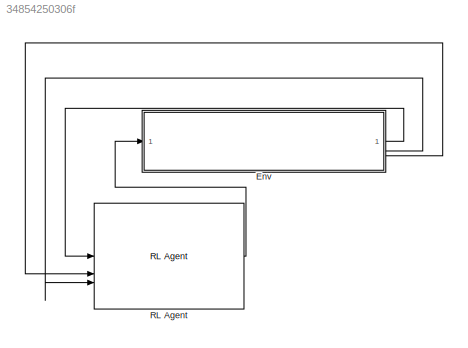
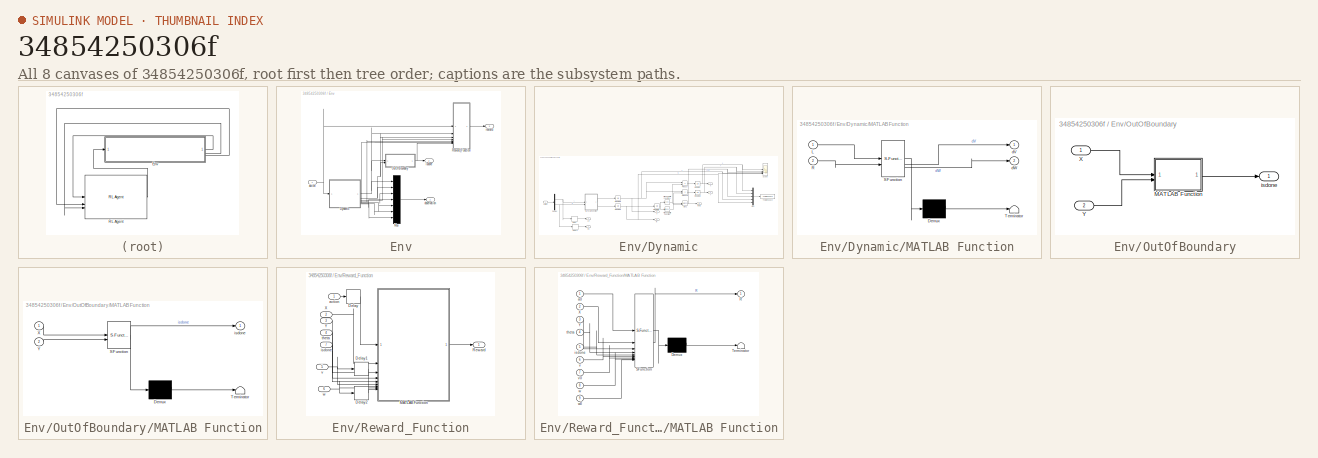
[diagram: thumbnail index - all 8 canvases of the model, root first then tree order]
MODEL slx_34854250306f
KIND model
CONFIG AbsTol = auto
CONFIG EnableMultiTasking = off
CONFIG FixedStep = auto
CONFIG MaxStep = auto
CONFIG MinStep = auto
CONFIG RelTol = 1e-3
CONFIG SampleTimeConstraint = Unconstrained
CONFIG SolverName = VariableStepAuto
CONFIG StartTime = 0.0
CONFIG StopTime = 10.0
BLOCK [SubSystem] Env
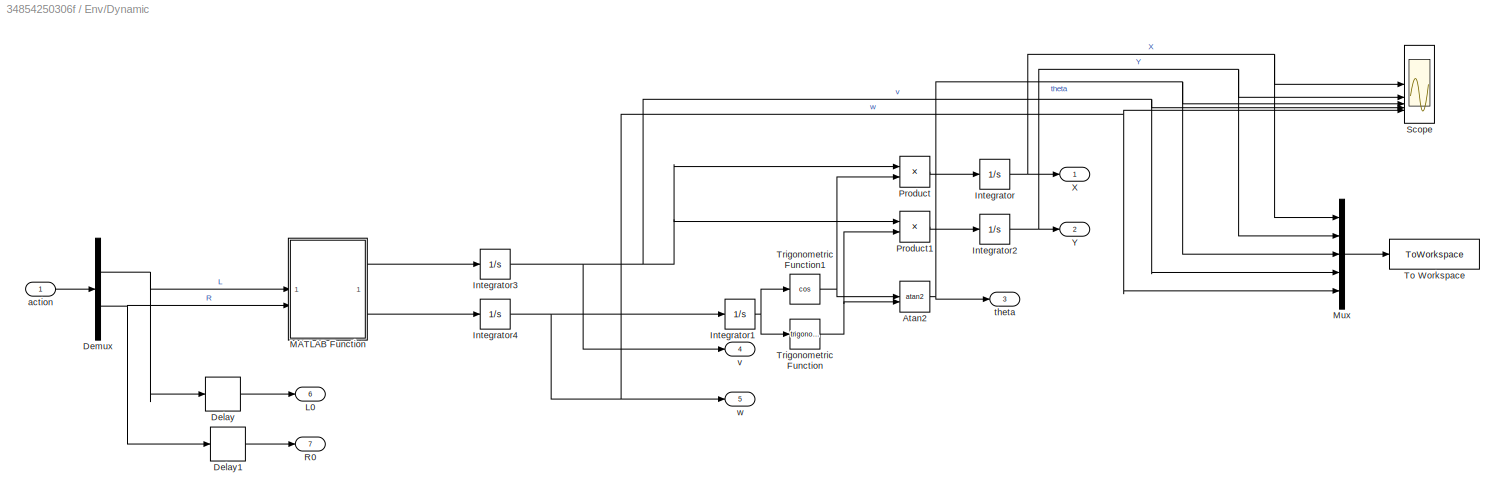
BLOCK [SubSystem] Env/Dynamic
BLOCK [Trigonometry] Env/Dynamic/Atan2
  Operator = atan2
BLOCK [Delay] Env/Dynamic/Delay
  DelayLength = 1
  InitialCondition = 0
  InputPortMap = u0
BLOCK [Delay] Env/Dynamic/Delay1
  DelayLength = 1
  InitialCondition = 0
  InputPortMap = u0
BLOCK [Demux] Env/Dynamic/Demux
  Outputs = 2
BLOCK [Integrator] Env/Dynamic/Integrator
  InitialCondition = x0
BLOCK [Integrator] Env/Dynamic/Integrator1
  InitialCondition = theta0
BLOCK [Integrator] Env/Dynamic/Integrator2
  InitialCondition = y0
BLOCK [Integrator] Env/Dynamic/Integrator3
BLOCK [Integrator] Env/Dynamic/Integrator4
BLOCK [Outport] Env/Dynamic/L0
  Port = 6
BLOCK [SubSystem] Env/Dynamic/MATLAB Function
  ErrorFcn = Stateflow.Translate.translate
  PermitHierarchicalResolution = ExplicitOnly
  SFBlockType = MATLAB Function
  TreatAsAtomicUnit = on
BLOCK [Demux] Env/Dynamic/MATLAB Function/ Demux 
  Outputs = 1
BLOCK [S-Function] Env/Dynamic/MATLAB Function/ SFunction 
  EnableBusSupport = off
  FunctionName = sf_sfun
  PortCounts = [2 3]
  SFcnIsStateOwnerBlock = off
  SFunctionDeploymentMode = off
  Tag = Stateflow S-Function 3
BLOCK [Terminator] Env/Dynamic/MATLAB Function/ Terminator 
BLOCK [Inport] Env/Dynamic/MATLAB Function/L
BLOCK [Inport] Env/Dynamic/MATLAB Function/R
  Port = 2
BLOCK [Outport] Env/Dynamic/MATLAB Function/dV
BLOCK [Outport] Env/Dynamic/MATLAB Function/dW
  Port = 2
BLOCK [Mux] Env/Dynamic/Mux
  DisplayOption = bar
  Inputs = 5
BLOCK [Product] Env/Dynamic/Product
BLOCK [Product] Env/Dynamic/Product1
BLOCK [Outport] Env/Dynamic/R0
  Port = 7
BLOCK [Scope] Env/Dynamic/Scope
  ActiveDisplayYMaximum = 36.2250173593529
  ActiveDisplayYMinimum = -29.512641911410267
  Floating = off
  GraphicalSettings = {"Style":{"BackgroundColor":[0.12941176470588237,0.12941176470588237,0.12941176470588237],"AxesColor":[0.07058823529411765,0.07058823529411765,0.07058823529411765],"LabelsColor":[0.8509803921568627,0.8509803921568627,0.8509803921568627],"PreserveColors":false,"Visible":[true,true,true,true,true],"LineStyle":["-","-","-","-","-"],"LineWidth":[1.5,1.5,1.5,1.5,1.5],"BarWidth":[0.9,0.9,0.9,0.9,0.9],"L...<+2399ch>
  MultipleDisplayCache = [{"MaxYLimMag":13.530684530696153,"MaxYLimReal":36.2250173593529,"MinYLimMag":0,"MinYLimReal":-29.512641911410267,"PlotAsMagnitudePhase":false,"ShowGrid":true,"ShowLegend":true,"Title":"%<SignalLabel>","YLabel":""}]
  NumInputPorts = 5
  ScopeFrameLocation = window
  ShowLegend = on
  WasSavedAsWebScope = on
  WindowPosition = [709.000000,190.000000,560.000000,420.000000,]
BLOCK [ToWorkspace] Env/Dynamic/To Workspace
  FixptAsFi = on
  MaxDataPoints = inf
  SampleTime = -1
  SaveFormat = Structure With Time
  VariableName = simout
BLOCK [Trigonometry] Env/Dynamic/Trigonometric Function
BLOCK [Trigonometry] Env/Dynamic/Trigonometric Function1
  Operator = cos
BLOCK [Outport] Env/Dynamic/X
BLOCK [Outport] Env/Dynamic/Y
  Port = 2
BLOCK [Inport] Env/Dynamic/action
BLOCK [Outport] Env/Dynamic/theta
  Port = 3
BLOCK [Outport] Env/Dynamic/v
  Port = 4
BLOCK [Outport] Env/Dynamic/w
  Port = 5
BLOCK [Mux] Env/Mux
  DisplayOption = bar
  Inputs = 7
BLOCK [SubSystem] Env/OutOfBoundary
BLOCK [SubSystem] Env/OutOfBoundary/MATLAB Function
  ErrorFcn = Stateflow.Translate.translate
  PermitHierarchicalResolution = ExplicitOnly
  SFBlockType = MATLAB Function
  TreatAsAtomicUnit = on
BLOCK [Demux] Env/OutOfBoundary/MATLAB Function/ Demux 
  Outputs = 1
BLOCK [S-Function] Env/OutOfBoundary/MATLAB Function/ SFunction 
  EnableBusSupport = off
  FunctionName = sf_sfun
  PortCounts = [2 2]
  SFcnIsStateOwnerBlock = off
  SFunctionDeploymentMode = off
  Tag = Stateflow S-Function 1
BLOCK [Terminator] Env/OutOfBoundary/MATLAB Function/ Terminator 
BLOCK [Inport] Env/OutOfBoundary/MATLAB Function/X
BLOCK [Inport] Env/OutOfBoundary/MATLAB Function/Y
  Port = 2
BLOCK [Outport] Env/OutOfBoundary/MATLAB Function/isdone
BLOCK [Inport] Env/OutOfBoundary/X
BLOCK [Inport] Env/OutOfBoundary/Y
  Port = 2
BLOCK [Outport] Env/OutOfBoundary/isdone
BLOCK [SubSystem] Env/Reward_Function
BLOCK [Delay] Env/Reward_Function/Delay
  DelayLength = 1
  InitialCondition = 0
  InputPortMap = u0
BLOCK [Delay] Env/Reward_Function/Delay1
  DelayLength = 1
  InitialCondition = 0
  InputPortMap = u0
BLOCK [Delay] Env/Reward_Function/Delay2
  DelayLength = 1
  InitialCondition = 0
  InputPortMap = u0
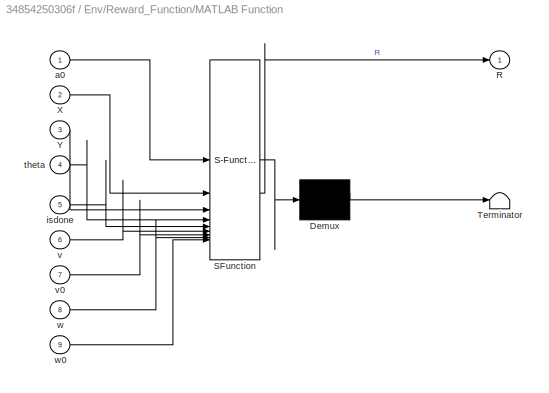
BLOCK [SubSystem] Env/Reward_Function/MATLAB Function
  ErrorFcn = Stateflow.Translate.translate
  PermitHierarchicalResolution = ExplicitOnly
  SFBlockType = MATLAB Function
  TreatAsAtomicUnit = on
BLOCK [Demux] Env/Reward_Function/MATLAB Function/ Demux 
  Outputs = 1
BLOCK [S-Function] Env/Reward_Function/MATLAB Function/ SFunction 
  EnableBusSupport = off
  FunctionName = sf_sfun
  PortCounts = [9 2]
  SFcnIsStateOwnerBlock = off
  SFunctionDeploymentMode = off
  Tag = Stateflow S-Function 2
BLOCK [Terminator] Env/Reward_Function/MATLAB Function/ Terminator 
BLOCK [Outport] Env/Reward_Function/MATLAB Function/R
BLOCK [Inport] Env/Reward_Function/MATLAB Function/X
  Port = 2
BLOCK [Inport] Env/Reward_Function/MATLAB Function/Y
  Port = 3
BLOCK [Inport] Env/Reward_Function/MATLAB Function/a0
BLOCK [Inport] Env/Reward_Function/MATLAB Function/isdone
  Port = 5
BLOCK [Inport] Env/Reward_Function/MATLAB Function/theta
  Port = 4
BLOCK [Inport] Env/Reward_Function/MATLAB Function/v
  Port = 6
BLOCK [Inport] Env/Reward_Function/MATLAB Function/v0
  Port = 7
BLOCK [Inport] Env/Reward_Function/MATLAB Function/w
  Port = 8
BLOCK [Inport] Env/Reward_Function/MATLAB Function/w0
  Port = 9
BLOCK [Outport] Env/Reward_Function/Reward
BLOCK [Inport] Env/Reward_Function/X
  Port = 2
BLOCK [Inport] Env/Reward_Function/Y
  Port = 3
BLOCK [Inport] Env/Reward_Function/action
BLOCK [Inport] Env/Reward_Function/isdone
  Port = 7
BLOCK [Inport] Env/Reward_Function/theta
  Port = 4
BLOCK [Inport] Env/Reward_Function/v
  Port = 5
BLOCK [Inport] Env/Reward_Function/w
  Port = 6
BLOCK [Inport] Env/action
BLOCK [Outport] Env/isdone
  Port = 2
BLOCK [Outport] Env/observation
BLOCK [Outport] Env/reward
  Port = 3
BLOCK [Reference] RL Agent  REF=rllib/RL Agent
  SourceBlock = rllib/RL Agent
  SourceType = RL Agent
NET Env/Dynamic/Atan2:1 -> Env/Dynamic/Mux:3, Env/Dynamic/Scope:3, Env/Dynamic/theta:1
LINE Env/Dynamic/Delay1:1 -> Env/Dynamic/R0:1
LINE Env/Dynamic/Delay:1 -> Env/Dynamic/L0:1
NET Env/Dynamic/Demux:1 -> Env/Dynamic/Delay:1, Env/Dynamic/MATLAB Function:1
NET Env/Dynamic/Demux:2 -> Env/Dynamic/Delay1:1, Env/Dynamic/MATLAB Function:2
NET Env/Dynamic/Integrator1:1 -> Env/Dynamic/Trigonometric Function1:1, Env/Dynamic/Trigonometric Function:1
NET Env/Dynamic/Integrator2:1 -> Env/Dynamic/Mux:2, Env/Dynamic/Scope:2, Env/Dynamic/Y:1
NET Env/Dynamic/Integrator3:1 -> Env/Dynamic/Mux:4, Env/Dynamic/Product1:1, Env/Dynamic/Product:1, Env/Dynamic/Scope:4, Env/Dynamic/v:1
NET Env/Dynamic/Integrator4:1 -> Env/Dynamic/Integrator1:1, Env/Dynamic/Mux:5, Env/Dynamic/Scope:5, Env/Dynamic/w:1
NET Env/Dynamic/Integrator:1 -> Env/Dynamic/Mux:1, Env/Dynamic/Scope:1, Env/Dynamic/X:1
LINE Env/Dynamic/MATLAB Function:1 -> Env/Dynamic/Integrator3:1
LINE Env/Dynamic/MATLAB Function:2 -> Env/Dynamic/Integrator4:1
LINE Env/Dynamic/Mux:1 -> Env/Dynamic/To Workspace:1
LINE Env/Dynamic/Product1:1 -> Env/Dynamic/Integrator2:1
LINE Env/Dynamic/Product:1 -> Env/Dynamic/Integrator:1
NET Env/Dynamic/Trigonometric Function1:1 -> Env/Dynamic/Atan2:1, Env/Dynamic/Product:2
NET Env/Dynamic/Trigonometric Function:1 -> Env/Dynamic/Atan2:2, Env/Dynamic/Product1:2
LINE Env/Dynamic/action:1 -> Env/Dynamic/Demux:1
NET Env/Dynamic:1 -> Env/Mux:1, Env/OutOfBoundary:1, Env/Reward_Function:2
NET Env/Dynamic:2 -> Env/Mux:2, Env/OutOfBoundary:2, Env/Reward_Function:3
NET Env/Dynamic:3 -> Env/Mux:3, Env/Reward_Function:4
NET Env/Dynamic:4 -> Env/Mux:4, Env/Reward_Function:5
NET Env/Dynamic:5 -> Env/Mux:5, Env/Reward_Function:6
LINE Env/Dynamic:6 -> Env/Mux:6
LINE Env/Dynamic:7 -> Env/Mux:7
LINE Env/Mux:1 -> Env/observation:1
LINE Env/OutOfBoundary/MATLAB Function:1 -> Env/OutOfBoundary/isdone:1
LINE Env/OutOfBoundary/X:1 -> Env/OutOfBoundary/MATLAB Function:1
LINE Env/OutOfBoundary/Y:1 -> Env/OutOfBoundary/MATLAB Function:2
NET Env/OutOfBoundary:1 -> Env/Reward_Function:7, Env/isdone:1
LINE Env/Reward_Function/Delay1:1 -> Env/Reward_Function/MATLAB Function:7
LINE Env/Reward_Function/Delay2:1 -> Env/Reward_Function/MATLAB Function:9
LINE Env/Reward_Function/Delay:1 -> Env/Reward_Function/MATLAB Function:1
LINE Env/Reward_Function/MATLAB Function:1 -> Env/Reward_Function/Reward:1
LINE Env/Reward_Function/X:1 -> Env/Reward_Function/MATLAB Function:2
LINE Env/Reward_Function/Y:1 -> Env/Reward_Function/MATLAB Function:3
LINE Env/Reward_Function/action:1 -> Env/Reward_Function/Delay:1
LINE Env/Reward_Function/isdone:1 -> Env/Reward_Function/MATLAB Function:5
LINE Env/Reward_Function/theta:1 -> Env/Reward_Function/MATLAB Function:4
NET Env/Reward_Function/v:1 -> Env/Reward_Function/Delay1:1, Env/Reward_Function/MATLAB Function:6
NET Env/Reward_Function/w:1 -> Env/Reward_Function/Delay2:1, Env/Reward_Function/MATLAB Function:8
LINE Env/Reward_Function:1 -> Env/reward:1
NET Env/action:1 -> Env/Dynamic:1, Env/Reward_Function:1
LINE Env:1 -> RL Agent:1
LINE Env:2 -> RL Agent:3
LINE Env:3 -> RL Agent:2
LINE RL Agent:1 -> Env:1
note: NET lines group one-source signal fan-out (src -> all destinations, sorted); 1:1 wires keep LINE
CHART Env/OutOfBoundary/MATLAB Function states=1 transitions=1
  STATE_LABEL 'eML_blk_kernel()'
  STATE_LABEL 'SCRIPT:\nfunction isdone = fcn(X, Y)\n\nboundary = 20;         \n\nisdone = false;\nif abs(X) > boundary || abs(Y) > boundary\n    isdone = true;\nend\n\n\n\n'
CHART Env/Reward_Function/MATLAB Function states=1 transitions=1
  STATE_LABEL 'eML_blk_kernel()'
  STATE_LABEL 'SCRIPT:\nfunction R = fcn(a0, X, Y, theta, isdone, v, v0, w, w0)\n\ntarX = 0;\ntarY = 0;\ntarTheta = 0;\n\nobstacle_center = [-4, 0]; % Obstacle position\nobstacle_radius = 1.5;       % Obstacle radius\nsafe_margin = 0.5;         % Minimum distance to keep away from obstacle\n\n%Penalty of out of boundary\nboundaryPenalty = 0;\nif isdone \n    boundaryPenalty = -100;\nend\n\n% Reward for reaching near target posit...<+1021ch>'
CHART Env/Dynamic/MATLAB Function states=1 transitions=1
  STATE_LABEL 'eML_blk_kernel()'
  STATE_LABEL 'SCRIPT:\nfunction [dV, dW] = fcn(L, R)\n    % Robot parameters \n    m = 10;      % mass (kg)\n    I = 5;       % moment of inertia (kg*m^2)\n    r = 0.1;     % wheel radius (m)\n    Ri = 0.2;    % distance for each wheel to center (m)\n\n    % Compute linear and angular acceleration\n    dV = (1 / (m * r)) * (L + R);\n    dW = (2 * Ri / (I * r)) * (L - R);\nend\n'
CHART  states=0 transitions=0
CHART  states=0 transitions=0
CHART  states=0 transitions=0
